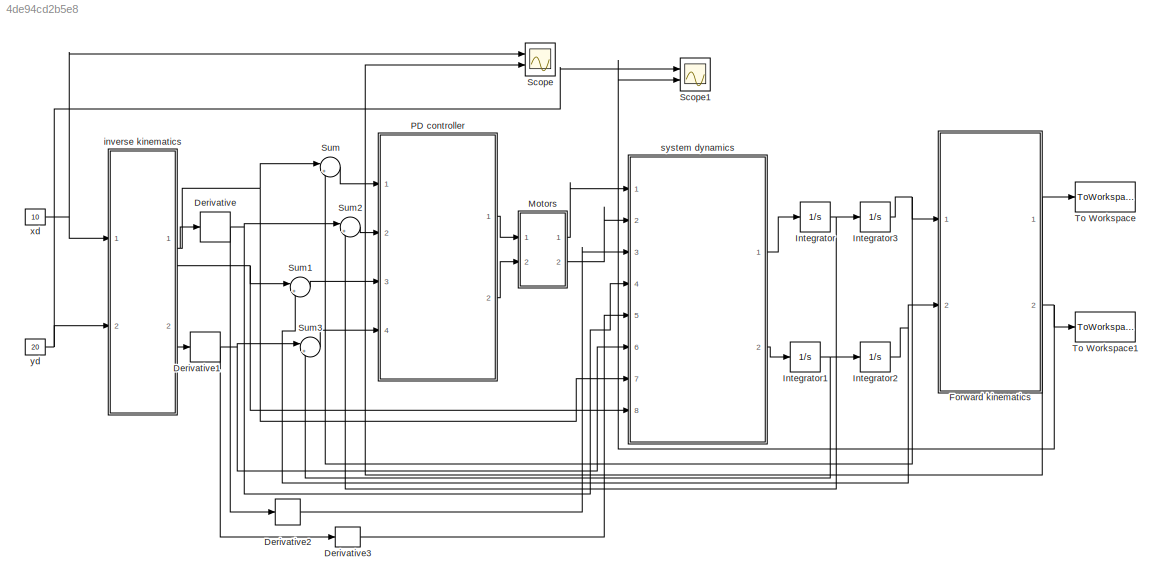
MODEL slx_4de94cd2b5e8
KIND model
CONFIG AbsTol = auto
CONFIG EnableMultiTasking = off
CONFIG FixedStep = auto
CONFIG MaxStep = auto
CONFIG MinStep = auto
CONFIG RelTol = 1e-3
CONFIG SampleTimeConstraint = Unconstrained
CONFIG Solver = VariableStepAuto
CONFIG SolverName = VariableStepAuto
CONFIG StartTime = 0.0
CONFIG StopTime = 10
BLOCK [Derivative] Derivative
BLOCK [Derivative] Derivative1
BLOCK [Derivative] Derivative2
BLOCK [Derivative] Derivative3
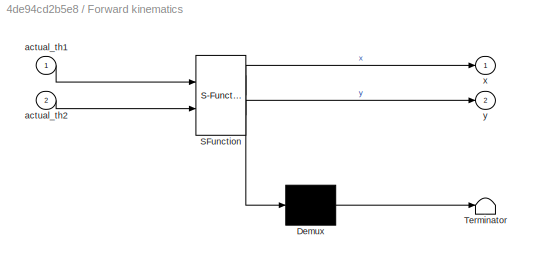
BLOCK [SubSystem] Forward kinematics 
  ErrorFcn = Stateflow.Translate.translate
  PermitHierarchicalResolution = ExplicitOnly
  Ports = [2, 2]
  RequestExecContextInheritance = off
  SFBlockType = MATLAB Function
  TreatAsAtomicUnit = on
  Variant = off
BLOCK [Demux] Forward kinematics / Demux 
  Outputs = 1
  Ports = [1, 1]
BLOCK [S-Function] Forward kinematics / SFunction 
  EnableBusSupport = on
  FunctionName = sf_sfun
  PortCounts = [2 3]
  Ports = [2, 3]
  SFcnIsStateOwnerBlock = off
  SFunctionDeploymentMode = off
  Tag = Stateflow S-Function twolinkDynamics_vision_worksheet 7
BLOCK [Terminator] Forward kinematics / Terminator 
BLOCK [Inport] Forward kinematics /actual_th1
  IconDisplay = Port number
BLOCK [Inport] Forward kinematics /actual_th2
  IconDisplay = Port number
  Port = 2
BLOCK [Outport] Forward kinematics /x
  IconDisplay = Port number
BLOCK [Outport] Forward kinematics /y
  IconDisplay = Port number
  Port = 2
BLOCK [Integrator] Integrator
  Ports = [1, 1]
BLOCK [Integrator] Integrator1
  Ports = [1, 1]
BLOCK [Integrator] Integrator2
  Ports = [1, 1]
BLOCK [Integrator] Integrator3
  Ports = [1, 1]
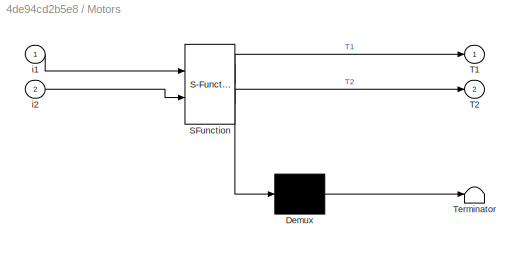
BLOCK [SubSystem] Motors 
  ErrorFcn = Stateflow.Translate.translate
  PermitHierarchicalResolution = ExplicitOnly
  Ports = [2, 2]
  RequestExecContextInheritance = off
  SFBlockType = MATLAB Function
  TreatAsAtomicUnit = on
  Variant = off
BLOCK [Demux] Motors / Demux 
  Outputs = 1
  Ports = [1, 1]
BLOCK [S-Function] Motors / SFunction 
  EnableBusSupport = on
  FunctionName = sf_sfun
  PortCounts = [2 3]
  Ports = [2, 3]
  SFcnIsStateOwnerBlock = off
  SFunctionDeploymentMode = off
  Tag = Stateflow S-Function twolinkDynamics_vision_worksheet 1
BLOCK [Terminator] Motors / Terminator 
BLOCK [Outport] Motors /T1
  IconDisplay = Port number
BLOCK [Outport] Motors /T2
  IconDisplay = Port number
  Port = 2
BLOCK [Inport] Motors /i1
  IconDisplay = Port number
BLOCK [Inport] Motors /i2
  IconDisplay = Port number
  Port = 2
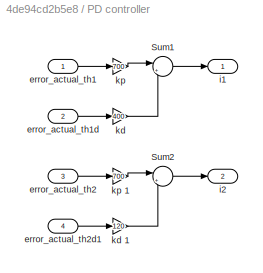
BLOCK [SubSystem] PD controller
  Ports = [4, 2]
  RequestExecContextInheritance = off
  Variant = off
BLOCK [Sum] PD controller/Sum1
  IconShape = round
  InputSameDT = off
  Inputs = |++
  OutDataTypeStr = Inherit: Inherit via internal rule
  Ports = [2, 1]
  SaturateOnIntegerOverflow = off
BLOCK [Sum] PD controller/Sum2
  IconShape = round
  InputSameDT = off
  Inputs = |++
  OutDataTypeStr = Inherit: Inherit via internal rule
  Ports = [2, 1]
  SaturateOnIntegerOverflow = off
BLOCK [Inport] PD controller/error_actual_th1
  IconDisplay = Port number
BLOCK [Inport] PD controller/error_actual_th1d
  IconDisplay = Port number
  Port = 2
BLOCK [Inport] PD controller/error_actual_th2
  IconDisplay = Port number
  Port = 3
BLOCK [Inport] PD controller/error_actual_th2d1
  IconDisplay = Port number
  Port = 4
BLOCK [Outport] PD controller/i1
  IconDisplay = Port number
BLOCK [Outport] PD controller/i2
  IconDisplay = Port number
  Port = 2
BLOCK [Gain] PD controller/kd 
  Gain = 400
  OutDataTypeStr = Inherit: Inherit via internal rule
  ParamDataTypeStr = Inherit: Inherit via internal rule
  SaturateOnIntegerOverflow = off
BLOCK [Gain] PD controller/kd 1
  Gain = 120
  OutDataTypeStr = Inherit: Inherit via internal rule
  ParamDataTypeStr = Inherit: Inherit via internal rule
  SaturateOnIntegerOverflow = off
BLOCK [Gain] PD controller/kp 
  Gain = 700
  OutDataTypeStr = Inherit: Inherit via internal rule
  ParamDataTypeStr = Inherit: Inherit via internal rule
  SaturateOnIntegerOverflow = off
BLOCK [Gain] PD controller/kp 1
  Gain = 700
  OutDataTypeStr = Inherit: Inherit via internal rule
  ParamDataTypeStr = Inherit: Inherit via internal rule
  SaturateOnIntegerOverflow = off
BLOCK [Scope] Scope
  NumInputPorts = 2
  Ports = [2]
  ScopeSpecificationString = Simulink.scopes.TimeScopeBlockCfg('CurrentConfiguration', extmgr.ConfigurationSet(extmgr.Configuration('Core','General UI',true),extmgr.Configuration('Core','Source UI',true),extmgr.Configuration('Sources','WiredSimulink',true,'SampleTime','1'),extmgr.Configuration('Visuals','Time Domain',true,'SerializedDisplays',{struct('MinYLimReal','7.5','MaxYLimReal','32.5','YLabelReal','','MinYLimMag','7.5',...<+1383ch>
BLOCK [Scope] Scope1
  NumInputPorts = 2
  Ports = [2]
  ScopeSpecificationString = Simulink.scopes.TimeScopeBlockCfg('CurrentConfiguration', extmgr.ConfigurationSet(extmgr.Configuration('Core','General UI',true),extmgr.Configuration('Core','Source UI',true),extmgr.Configuration('Sources','WiredSimulink',true,'SampleTime','1','DataLoggingVariableName','ScopeData1'),extmgr.Configuration('Visuals','Time Domain',true,'SerializedDisplays',{struct('MinYLimReal','-2.5','MaxYLimReal','2...<+1433ch>
BLOCK [Sum] Sum
  IconShape = round
  InputSameDT = off
  Inputs = |+-
  OutDataTypeStr = Inherit: Inherit via internal rule
  Ports = [2, 1]
  SaturateOnIntegerOverflow = off
BLOCK [Sum] Sum1
  IconShape = round
  InputSameDT = off
  Inputs = |+-
  OutDataTypeStr = Inherit: Inherit via internal rule
  Ports = [2, 1]
  SaturateOnIntegerOverflow = off
BLOCK [Sum] Sum2
  IconShape = round
  InputSameDT = off
  Inputs = |+-
  OutDataTypeStr = Inherit: Inherit via internal rule
  Ports = [2, 1]
  SaturateOnIntegerOverflow = off
BLOCK [Sum] Sum3
  IconShape = round
  InputSameDT = off
  Inputs = |+-
  OutDataTypeStr = Inherit: Inherit via internal rule
  Ports = [2, 1]
  SaturateOnIntegerOverflow = off
BLOCK [ToWorkspace] To Workspace
  FixptAsFi = on
  MaxDataPoints = inf
  Ports = [1]
  SampleTime = 1
  Save2DSignal = 3-D array (concatenate along third dimension)
  VariableName = x
BLOCK [ToWorkspace] To Workspace1
  FixptAsFi = on
  MaxDataPoints = inf
  Ports = [1]
  SampleTime = 1
  Save2DSignal = 3-D array (concatenate along third dimension)
  VariableName = y
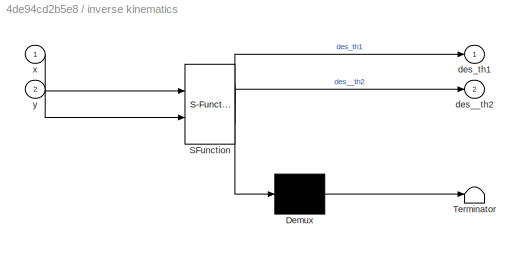
BLOCK [SubSystem] inverse kinematics
  ErrorFcn = Stateflow.Translate.translate
  PermitHierarchicalResolution = ExplicitOnly
  Ports = [2, 2]
  RequestExecContextInheritance = off
  SFBlockType = MATLAB Function
  TreatAsAtomicUnit = on
  Variant = off
BLOCK [Demux] inverse kinematics/ Demux 
  Outputs = 1
  Ports = [1, 1]
BLOCK [S-Function] inverse kinematics/ SFunction 
  EnableBusSupport = on
  FunctionName = sf_sfun
  PortCounts = [2 3]
  Ports = [2, 3]
  SFcnIsStateOwnerBlock = off
  SFunctionDeploymentMode = off
  Tag = Stateflow S-Function twolinkDynamics_vision_worksheet 2
BLOCK [Terminator] inverse kinematics/ Terminator 
BLOCK [Outport] inverse kinematics/des__th2
  IconDisplay = Port number
  Port = 2
BLOCK [Outport] inverse kinematics/des_th1
  IconDisplay = Port number
BLOCK [Inport] inverse kinematics/x
  IconDisplay = Port number
BLOCK [Inport] inverse kinematics/y
  IconDisplay = Port number
  Port = 2
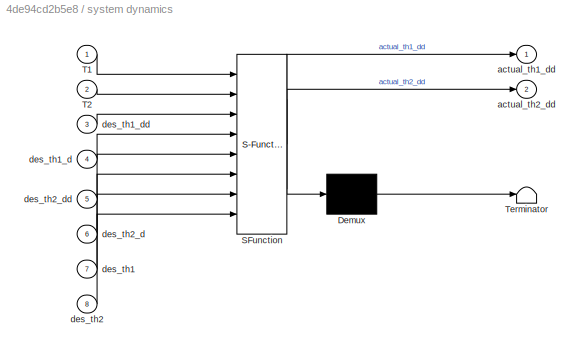
BLOCK [SubSystem] system dynamics
  ErrorFcn = Stateflow.Translate.translate
  PermitHierarchicalResolution = ExplicitOnly
  Ports = [8, 2]
  RequestExecContextInheritance = off
  SFBlockType = MATLAB Function
  TreatAsAtomicUnit = on
  Variant = off
BLOCK [Demux] system dynamics/ Demux 
  Outputs = 1
  Ports = [1, 1]
BLOCK [S-Function] system dynamics/ SFunction 
  EnableBusSupport = on
  FunctionName = sf_sfun
  PortCounts = [8 3]
  Ports = [8, 3]
  SFcnIsStateOwnerBlock = off
  SFunctionDeploymentMode = off
  Tag = Stateflow S-Function twolinkDynamics_vision_worksheet 4
BLOCK [Terminator] system dynamics/ Terminator 
BLOCK [Inport] system dynamics/T1
  IconDisplay = Port number
BLOCK [Inport] system dynamics/T2
  IconDisplay = Port number
  Port = 2
BLOCK [Outport] system dynamics/actual_th1_dd
  IconDisplay = Port number
BLOCK [Outport] system dynamics/actual_th2_dd
  IconDisplay = Port number
  Port = 2
BLOCK [Inport] system dynamics/des_th1
  IconDisplay = Port number
  Port = 7
BLOCK [Inport] system dynamics/des_th1_d
  IconDisplay = Port number
  Port = 4
BLOCK [Inport] system dynamics/des_th1_dd
  IconDisplay = Port number
  Port = 3
BLOCK [Inport] system dynamics/des_th2
  IconDisplay = Port number
  Port = 8
BLOCK [Inport] system dynamics/des_th2_d
  IconDisplay = Port number
  Port = 6
BLOCK [Inport] system dynamics/des_th2_dd
  IconDisplay = Port number
  Port = 5
BLOCK [Constant] xd
  Value = 10
BLOCK [Constant] yd
  Value = 20
NET Derivative1:1 -> Derivative3:1, Sum3:1, system dynamics:6
LINE Derivative2:1 -> system dynamics:3
LINE Derivative3:1 -> system dynamics:5
NET Derivative:1 -> Derivative2:1, Sum2:1, system dynamics:4
NET Forward kinematics :1 -> Scope:2, To Workspace:1
NET Forward kinematics :2 -> Scope1:2, To Workspace1:1
NET Integrator1:1 -> Integrator2:1, Sum3:2
NET Integrator2:1 -> Forward kinematics :2, Sum1:2
NET Integrator3:1 -> Forward kinematics :1, Sum:2
NET Integrator:1 -> Integrator3:1, Sum2:2
LINE Motors :1 -> system dynamics:1
LINE Motors :2 -> system dynamics:2
LINE PD controller/Sum1:1 -> PD controller/i1:1
LINE PD controller/Sum2:1 -> PD controller/i2:1
LINE PD controller/error_actual_th1:1 -> PD controller/kp :1
LINE PD controller/error_actual_th1d:1 -> PD controller/kd :1
LINE PD controller/error_actual_th2:1 -> PD controller/kp 1:1
LINE PD controller/error_actual_th2d1:1 -> PD controller/kd 1:1
LINE PD controller/kd 1:1 -> PD controller/Sum2:2
LINE PD controller/kd :1 -> PD controller/Sum1:2
LINE PD controller/kp 1:1 -> PD controller/Sum2:1
LINE PD controller/kp :1 -> PD controller/Sum1:1
LINE PD controller:1 -> Motors :1
LINE PD controller:2 -> Motors :2
LINE Sum1:1 -> PD controller:3
LINE Sum2:1 -> PD controller:2
LINE Sum3:1 -> PD controller:4
LINE Sum:1 -> PD controller:1
NET inverse kinematics:1 -> Derivative:1, Sum:1, system dynamics:7
NET inverse kinematics:2 -> Derivative1:1, Sum1:1, system dynamics:8
LINE system dynamics:1 -> Integrator:1
LINE system dynamics:2 -> Integrator1:1
NET xd:1 -> Scope:1, inverse kinematics:1
NET yd:1 -> Scope1:1, inverse kinematics:2
note: NET lines group one-source signal fan-out (src -> all destinations, sorted); 1:1 wires keep LINE
CHART Motors  states=1 transitions=1
  STATE_LABEL 'eML_blk_kernel()'
  STATE_LABEL 'SCRIPT:\nfunction [T1,T2]= fcn(i1,i2)\nkt=10;\nT1=kt*i1;\nkt=10;\nT2=kt*i2;\n\n'
CHART inverse 
kinematics states=1 transitions=1
  STATE_LABEL 'eML_blk_kernel()'
  STATE_LABEL 'SCRIPT:\nfunction [des_th1,des__th2]= fcn(x,y)\nL1=15;\nL2=15;\nM1=1;\nM2=0.5;\nc2= (x^2 +y^2 -L1^2 -L2^2)/(2*L1*L2)\ns2=(1-c2^2)^0.5\nK1= L1+L2*c2\nK2=L2*s2\ndes_th1= atan2 (y,x)-atan2(K2,K1);\ndes__th2=atan2 (s2,c2);\n\n\n\n\n\n\n\n\n'
CHART system 
dynamics states=1 transitions=1
  STATE_LABEL 'eML_blk_kernel()'
  STATE_LABEL 'SCRIPT:\nfunction [actual_th1_dd,actual_th2_dd]= fcn(T1, T2,des_th1_dd,des_th1_d,des_th2_dd,des_th2_d,des_th1,des_th2)\n\n\n\nN=1;\njm1=0.01;\njm2=0.01;\ncm1=0.1;\ncm2=0.1;\nM1=1;\nM2=0.5;\nL1=15;\nL2=15;\ng=9.8/100;\n\nth1=des_th1\nth2=des_th2\nth1dd=des_th1_dd\nth1d=des_th1_d\nth2dd=des_th2_dd\nth2d=des_th2_d\n\nM=[((M1+M2)*(L1^2)+ (M2*L2^2)+ (2*M2*L1*L2*cos(th2)))  (M2*L2^2+ M2*L1*L2*cos(th2));\n   (M2*L2^2+M2*L1*L2*c...<+524ch>'
CHART Forward kinematics
 states=1 transitions=1
  STATE_LABEL 'eML_blk_kernel()'
  STATE_LABEL 'SCRIPT:\nfunction [x,y]= fcn(actual_th1,actual_th2)\n\nL1=15;\nL2=15;\n\n\nx=L2*cos(actual_th1 + actual_th2) + L1*cos(actual_th1)\ny=L2*sin(actual_th1 + actual_th2) + L1*sin(actual_th1)\n'
